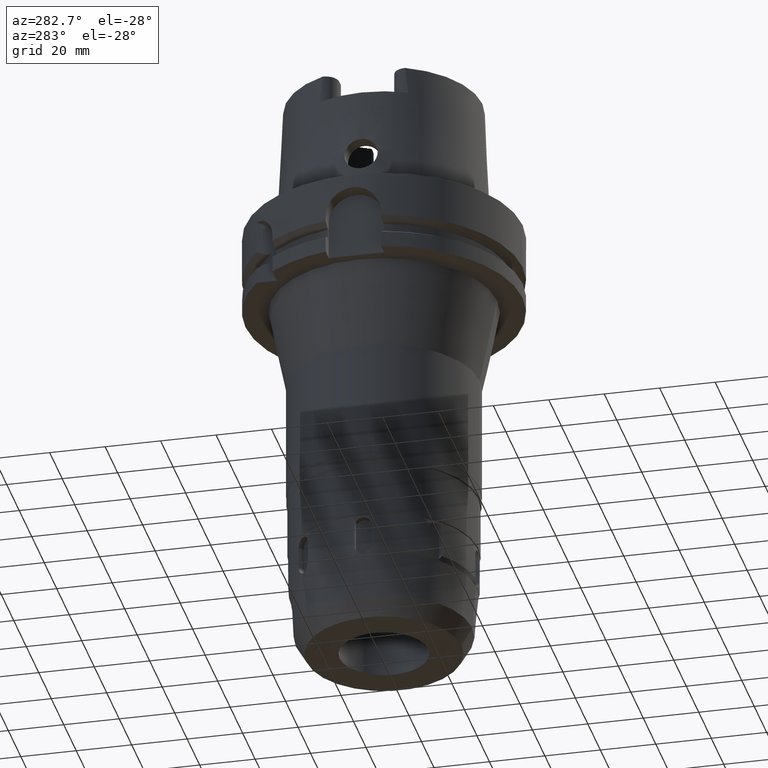
[diagram: clean part render]
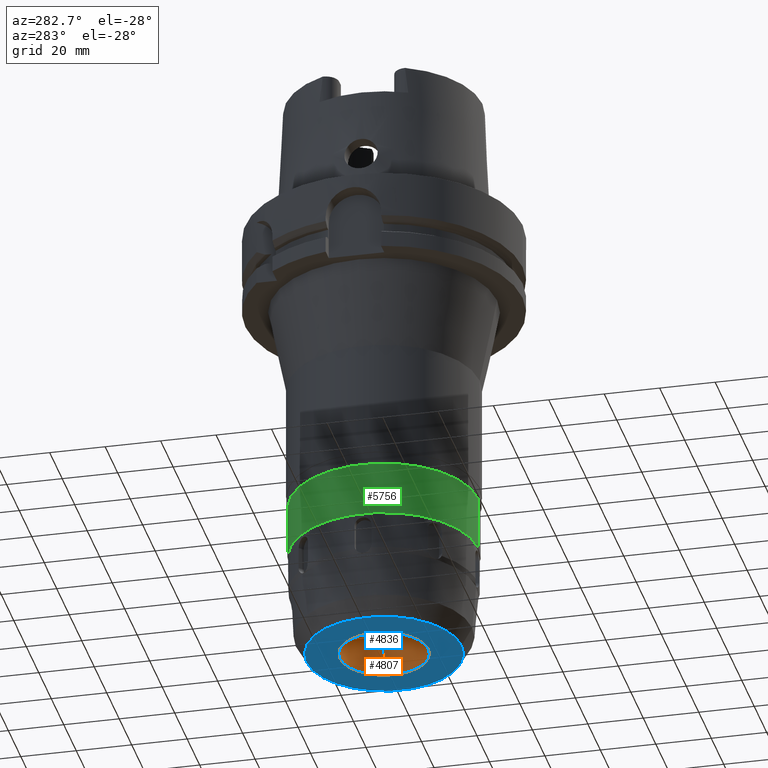
[diagram: same view with three faces highlighted in distinct colors, each labeled with its STEP entity id]
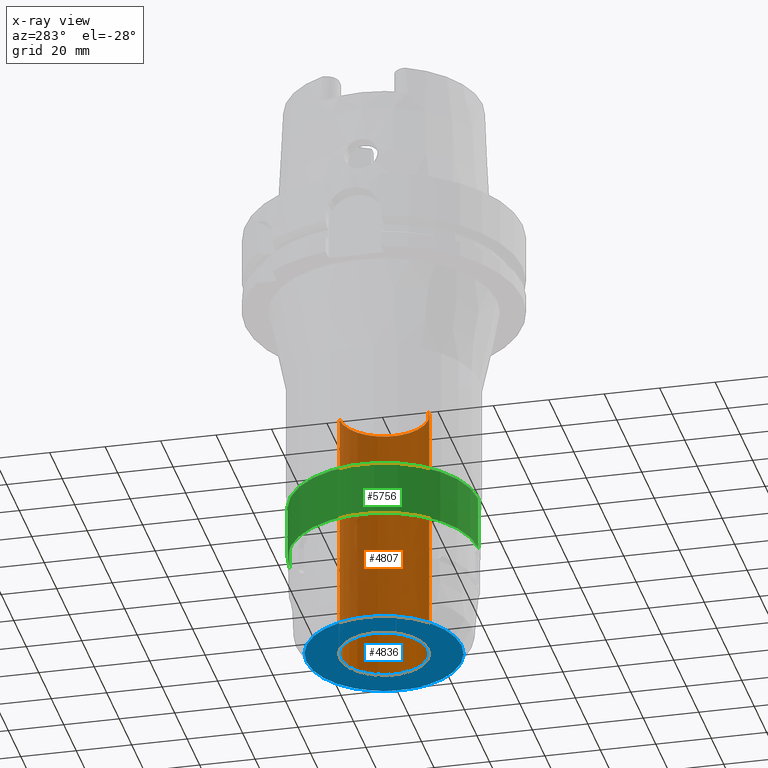
[diagram: x-ray of the same camera — body ghosted, the three highlighted faces saturated]
A machine part, auxiliary view with three faces highlighted in distinct colors.
The next image is the same camera in x-ray (body ghosted, the three faces saturated) — at least one of them is partly hidden behind the body in this view.
Their STEP definitions:

[orange] entity #4807 — the highlighted cylindrical surface (partial cylindrical patch) has radius 16 mm, axis along (0, 0, 1).
#1009=CARTESIAN_POINT('',(0.E0,0.E0,-7.E1));
#1010=DIRECTION('',(0.E0,0.E0,1.E0));
#1011=DIRECTION('',(0.E0,-1.E0,0.E0));
#1012=AXIS2_PLACEMENT_3D('',#1009,#1010,#1011);
#1025=DIRECTION('',(0.E0,0.E0,1.E0));
#1026=VECTOR('',#1025,9.5E1);
#1027=CARTESIAN_POINT('',(0.E0,1.6E1,-1.65E2));
#1028=LINE('',#1027,#1026);
#1032=DIRECTION('',(0.E0,0.E0,1.E0));
#1033=VECTOR('',#1032,9.5E1);
#1034=CARTESIAN_POINT('',(0.E0,-1.6E1,-1.65E2));
#1035=LINE('',#1034,#1033);
#1063=CARTESIAN_POINT('',(0.E0,0.E0,-1.65E2));
#1064=DIRECTION('',(0.E0,0.E0,-1.E0));
#1065=DIRECTION('',(0.E0,1.E0,0.E0));
#1066=AXIS2_PLACEMENT_3D('',#1063,#1064,#1065);
#3708=CARTESIAN_POINT('',(0.E0,-1.6E1,-7.E1));
#3709=CARTESIAN_POINT('',(0.E0,1.6E1,-7.E1));
#3710=VERTEX_POINT('',#3708);
#3711=VERTEX_POINT('',#3709);
#3712=CARTESIAN_POINT('',(0.E0,1.6E1,-1.65E2));
#3713=VERTEX_POINT('',#3712);
#3714=CARTESIAN_POINT('',(0.E0,-1.6E1,-1.65E2));
#3715=VERTEX_POINT('',#3714);
#4793=CARTESIAN_POINT('',(0.E0,0.E0,-1.7575E2));
#4794=DIRECTION('',(0.E0,0.E0,1.E0));
#4795=DIRECTION('',(0.E0,1.E0,0.E0));
#4796=AXIS2_PLACEMENT_3D('',#4793,#4794,#4795);
#4797=CYLINDRICAL_SURFACE('',#4796,1.6E1);
#4799=ORIENTED_EDGE('',*,*,#4798,.T.);
#4800=ORIENTED_EDGE('',*,*,#4786,.F.);
#4802=ORIENTED_EDGE('',*,*,#4801,.F.);
#4804=ORIENTED_EDGE('',*,*,#4803,.F.);
#4805=EDGE_LOOP('',(#4799,#4800,#4802,#4804));
#4806=FACE_OUTER_BOUND('',#4805,.F.);
#1013=CIRCLE('',#1012,1.6E1);
#1067=CIRCLE('',#1066,1.6E1);
#4786=EDGE_CURVE('',#3710,#3711,#1013,.T.);
#4798=EDGE_CURVE('',#3713,#3711,#1028,.T.);
#4801=EDGE_CURVE('',#3715,#3710,#1035,.T.);
#4803=EDGE_CURVE('',#3713,#3715,#1067,.T.);
#4807=ADVANCED_FACE('',(#4806),#4797,.F.);

[blue] entity #4836 — the highlighted planar face has unit normal (0, 0, 1).
#1039=CARTESIAN_POINT('',(0.E0,0.E0,-1.65E2));
#1040=DIRECTION('',(0.E0,0.E0,1.E0));
#1041=DIRECTION('',(0.E0,-1.E0,0.E0));
#1042=AXIS2_PLACEMENT_3D('',#1039,#1040,#1041);
#1047=CARTESIAN_POINT('',(0.E0,0.E0,-1.65E2));
#1048=DIRECTION('',(0.E0,0.E0,1.E0));
#1049=DIRECTION('',(0.E0,1.E0,0.E0));
#1050=AXIS2_PLACEMENT_3D('',#1047,#1048,#1049);
#1055=CARTESIAN_POINT('',(0.E0,0.E0,-1.65E2));
#1056=DIRECTION('',(0.E0,0.E0,-1.E0));
#1057=DIRECTION('',(0.E0,-1.E0,0.E0));
#1058=AXIS2_PLACEMENT_3D('',#1055,#1056,#1057);
#1063=CARTESIAN_POINT('',(0.E0,0.E0,-1.65E2));
#1064=DIRECTION('',(0.E0,0.E0,-1.E0));
#1065=DIRECTION('',(0.E0,1.E0,0.E0));
#1066=AXIS2_PLACEMENT_3D('',#1063,#1064,#1065);
#3712=CARTESIAN_POINT('',(0.E0,1.6E1,-1.65E2));
#3713=VERTEX_POINT('',#3712);
#3714=CARTESIAN_POINT('',(0.E0,-1.6E1,-1.65E2));
#3715=VERTEX_POINT('',#3714);
#3716=CARTESIAN_POINT('',(0.E0,-2.8E1,-1.65E2));
#3717=CARTESIAN_POINT('',(0.E0,2.8E1,-1.65E2));
#3718=VERTEX_POINT('',#3716);
#3719=VERTEX_POINT('',#3717);
#4821=CARTESIAN_POINT('',(0.E0,0.E0,-1.65E2));
#4822=DIRECTION('',(0.E0,0.E0,1.E0));
#4823=DIRECTION('',(0.E0,1.E0,0.E0));
#4824=AXIS2_PLACEMENT_3D('',#4821,#4822,#4823);
#4825=PLANE('',#4824);
#4827=ORIENTED_EDGE('',*,*,#4826,.T.);
#4829=ORIENTED_EDGE('',*,*,#4828,.T.);
#4830=EDGE_LOOP('',(#4827,#4829));
#4831=FACE_OUTER_BOUND('',#4830,.F.);
#4832=ORIENTED_EDGE('',*,*,#4814,.T.);
#4833=ORIENTED_EDGE('',*,*,#4803,.T.);
#4834=EDGE_LOOP('',(#4832,#4833));
#4835=FACE_BOUND('',#4834,.F.);
#1043=CIRCLE('',#1042,2.8E1);
#1051=CIRCLE('',#1050,2.8E1);
#1059=CIRCLE('',#1058,1.6E1);
#1067=CIRCLE('',#1066,1.6E1);
#4803=EDGE_CURVE('',#3713,#3715,#1067,.T.);
#4814=EDGE_CURVE('',#3715,#3713,#1059,.T.);
#4826=EDGE_CURVE('',#3718,#3719,#1043,.T.);
#4828=EDGE_CURVE('',#3719,#3718,#1051,.T.);
#4836=ADVANCED_FACE('',(#4831,#4835),#4825,.F.);

[green] entity #5756 — the highlighted cylindrical surface (partial cylindrical patch) has radius 34 mm, axis along (0, 0, 1).
#2413=CARTESIAN_POINT('',(0.E0,0.E0,-1.268E2));
#2414=DIRECTION('',(0.E0,0.E0,1.E0));
#2415=DIRECTION('',(0.E0,1.E0,0.E0));
#2416=AXIS2_PLACEMENT_3D('',#2413,#2414,#2415);
#2459=DIRECTION('',(0.E0,0.E0,-1.E0));
#2460=VECTOR('',#2459,1.965E1);
#2461=CARTESIAN_POINT('',(0.E0,3.4E1,-1.0715E2));
#2462=LINE('',#2461,#2460);
#2466=DIRECTION('',(0.E0,0.E0,-1.E0));
#2467=VECTOR('',#2466,1.965E1);
#2468=CARTESIAN_POINT('',(0.E0,-3.4E1,-1.0715E2));
#2469=LINE('',#2468,#2467);
#2488=CARTESIAN_POINT('',(0.E0,0.E0,-1.0715E2));
#2489=DIRECTION('',(0.E0,0.E0,-1.E0));
#2490=DIRECTION('',(0.E0,-1.E0,0.E0));
#2491=AXIS2_PLACEMENT_3D('',#2488,#2489,#2490);
#3908=CARTESIAN_POINT('',(0.E0,3.4E1,-1.268E2));
#3909=VERTEX_POINT('',#3908);
#3910=CARTESIAN_POINT('',(0.E0,-3.4E1,-1.268E2));
#3911=VERTEX_POINT('',#3910);
#3912=CARTESIAN_POINT('',(0.E0,3.4E1,-1.0715E2));
#3913=VERTEX_POINT('',#3912);
#3914=CARTESIAN_POINT('',(0.E0,-3.4E1,-1.0715E2));
#3915=VERTEX_POINT('',#3914);
#5744=CARTESIAN_POINT('',(0.E0,0.E0,-1.7575E2));
#5745=DIRECTION('',(0.E0,0.E0,1.E0));
#5746=DIRECTION('',(0.E0,1.E0,0.E0));
#5747=AXIS2_PLACEMENT_3D('',#5744,#5745,#5746);
#5748=CYLINDRICAL_SURFACE('',#5747,3.4E1);
#5749=ORIENTED_EDGE('',*,*,#5734,.F.);
#5751=ORIENTED_EDGE('',*,*,#5750,.F.);
#5752=ORIENTED_EDGE('',*,*,#5737,.T.);
#5753=ORIENTED_EDGE('',*,*,#5708,.F.);
#5754=EDGE_LOOP('',(#5749,#5751,#5752,#5753));
#5755=FACE_OUTER_BOUND('',#5754,.F.);
#2417=CIRCLE('',#2416,3.4E1);
#2492=CIRCLE('',#2491,3.4E1);
#5708=EDGE_CURVE('',#3909,#3911,#2417,.T.);
#5734=EDGE_CURVE('',#3913,#3909,#2462,.T.);
#5737=EDGE_CURVE('',#3915,#3911,#2469,.T.);
#5750=EDGE_CURVE('',#3915,#3913,#2492,.T.);
#5756=ADVANCED_FACE('',(#5755),#5748,.T.);